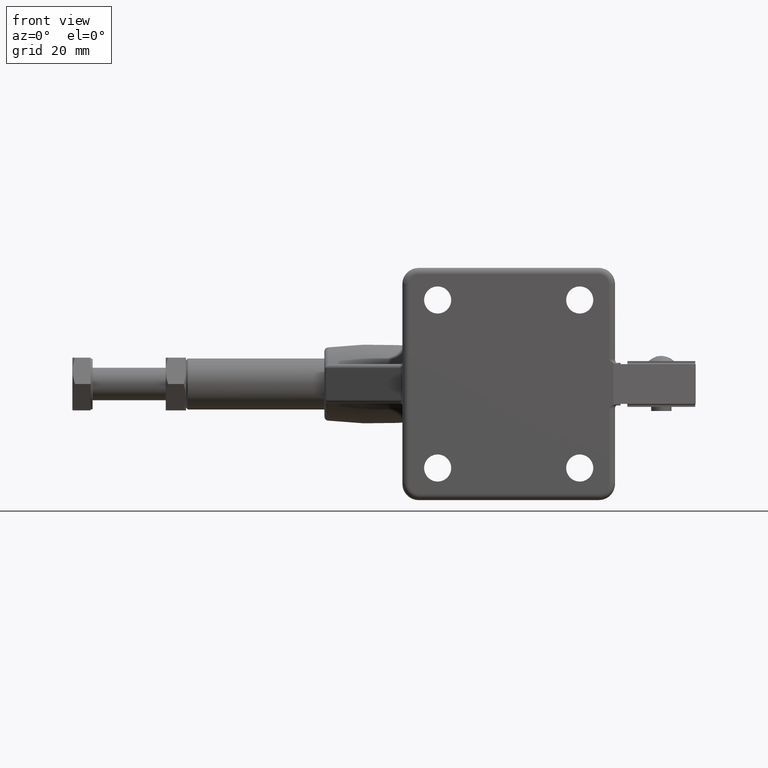
[diagram: clean part render]
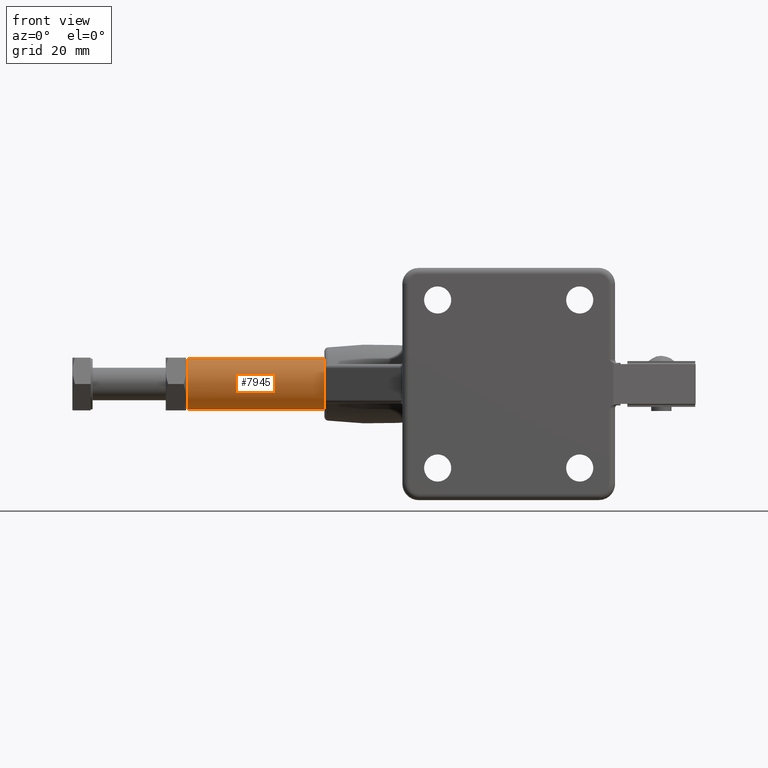
[diagram: same view with one face highlighted and labeled with its STEP entity id]
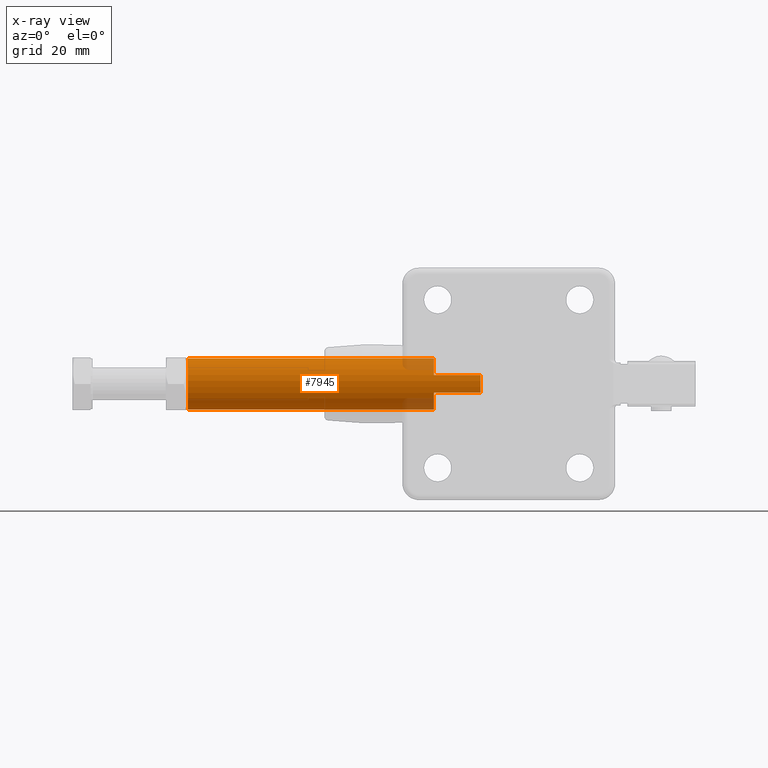
[diagram: x-ray of the same camera — body ghosted, the highlighted face saturated]
A machine part, front view. The second image highlights one B-rep face of the part: STEP entity #7945.
The next image is the same camera in x-ray: the body ghosted, the highlighted face saturated — about 5% of this face is hidden behind the body in this view.
In plain terms, the highlighted cylindrical surface (edge-blend (fillet) strip) has radius 6.29 mm, axis along (1, 0, 0).
Its self-contained STEP definition (entity closure, byte-faithful):
#425 = DIRECTION ( 'NONE',  ( 1.000000000000000000, -0.0000000000000000000, -0.0000000000000000000 ) ) ;
#1159 = LINE ( 'NONE', #7478, #7119 ) ;
#1387 = CARTESIAN_POINT ( 'NONE',  ( -123.7434796880213700, 25.40000000000008700, 6.289999999999997400 ) ) ;
#1403 = CARTESIAN_POINT ( 'NONE',  ( -123.2434796880213700, 25.40000000000008700, -6.290000000000003600 ) ) ;
#1465 = VECTOR ( 'NONE', #4222, 1000.000000000000000 ) ;
#1559 = AXIS2_PLACEMENT_3D ( 'NONE', #8323, #2423, #3892 ) ;
#1698 = ORIENTED_EDGE ( 'NONE', *, *, #5644, .F. ) ;
#1837 = CARTESIAN_POINT ( 'NONE',  ( -123.2434796880213700, 25.40000000000008700, 6.289999999999997400 ) ) ;
#1849 = EDGE_CURVE ( 'NONE', #4898, #8342, #1905, .T. ) ;
#1892 = DIRECTION ( 'NONE',  ( -1.000000000000000000, 0.0000000000000000000, 0.0000000000000000000 ) ) ;
#1905 = LINE ( 'NONE', #4990, #1465 ) ;
#1906 = EDGE_CURVE ( 'NONE', #6816, #6336, #2991, .T. ) ;
#2155 = ORIENTED_EDGE ( 'NONE', *, *, #1906, .F. ) ;
#2314 = CARTESIAN_POINT ( 'NONE',  ( -62.64347968802136500, 25.40000000000008700, -3.719593420145837800E-015 ) ) ;
#2373 = CARTESIAN_POINT ( 'NONE',  ( -62.64347968802136500, 19.50728415753830800, -2.200000000000002000 ) ) ;
#2423 = DIRECTION ( 'NONE',  ( 1.000000000000000000, 0.0000000000000000000, 0.0000000000000000000 ) ) ;
#2465 = VERTEX_POINT ( 'NONE', #1403 ) ;
#2613 = EDGE_CURVE ( 'NONE', #3290, #4898, #4861, .T. ) ;
#2772 = CARTESIAN_POINT ( 'NONE',  ( -51.14347968802136500, 19.50728415753830800, -2.200000000000002000 ) ) ;
#2815 = EDGE_CURVE ( 'NONE', #3119, #2465, #8875, .T. ) ;
#2821 = DIRECTION ( 'NONE',  ( 1.000000000000000000, -0.0000000000000000000, -0.0000000000000000000 ) ) ;
#2851 = ORIENTED_EDGE ( 'NONE', *, *, #1849, .F. ) ;
#2901 = CIRCLE ( 'NONE', #9620, 6.290000000000000000 ) ;
#2991 = CIRCLE ( 'NONE', #3723, 6.290000000000000000 ) ;
#3075 = DIRECTION ( 'NONE',  ( 0.0000000000000000000, 0.0000000000000000000, 1.000000000000000000 ) ) ;
#3084 = CARTESIAN_POINT ( 'NONE',  ( -51.14347968802136500, 19.50728415753830800, 2.199999999999994000 ) ) ;
#3119 = VERTEX_POINT ( 'NONE', #1837 ) ;
#3164 = CYLINDRICAL_SURFACE ( 'NONE', #1559, 6.290000000000000000 ) ;
#3290 = VERTEX_POINT ( 'NONE', #6738 ) ;
#3393 = FACE_OUTER_BOUND ( 'NONE', #4736, .T. ) ;
#3477 = LINE ( 'NONE', #1387, #4828 ) ;
#3723 = AXIS2_PLACEMENT_3D ( 'NONE', #7292, #2821, #8024 ) ;
#3754 = DIRECTION ( 'NONE',  ( 1.000000000000000000, 0.0000000000000000000, 0.0000000000000000000 ) ) ;
#3892 = DIRECTION ( 'NONE',  ( 0.0000000000000000000, 0.0000000000000000000, -1.000000000000000000 ) ) ;
#4186 = VECTOR ( 'NONE', #8886, 1000.000000000000000 ) ;
#4213 = ORIENTED_EDGE ( 'NONE', *, *, #4593, .T. ) ;
#4222 = DIRECTION ( 'NONE',  ( 1.000000000000000000, 0.0000000000000000000, 0.0000000000000000000 ) ) ;
#4433 = LINE ( 'NONE', #6680, #4186 ) ;
#4593 = EDGE_CURVE ( 'NONE', #2465, #6336, #1159, .T. ) ;
#4736 = EDGE_LOOP ( 'NONE', ( #1698, #6256, #4213, #2155, #6720, #5193, #2851, #9233 ) ) ;
#4828 = VECTOR ( 'NONE', #5134, 1000.000000000000000 ) ;
#4861 = CIRCLE ( 'NONE', #5192, 6.290000000000000000 ) ;
#4898 = VERTEX_POINT ( 'NONE', #9241 ) ;
#4939 = CARTESIAN_POINT ( 'NONE',  ( -123.2434796880213700, 25.40000000000008700, -3.719593420145837800E-015 ) ) ;
#4990 = CARTESIAN_POINT ( 'NONE',  ( -123.7434796880213700, 19.50728415753830800, 2.199999999999994000 ) ) ;
#5061 = VERTEX_POINT ( 'NONE', #2772 ) ;
#5134 = DIRECTION ( 'NONE',  ( 1.000000000000000000, 0.0000000000000000000, 0.0000000000000000000 ) ) ;
#5192 = AXIS2_PLACEMENT_3D ( 'NONE', #2314, #7541, #3075 ) ;
#5193 = ORIENTED_EDGE ( 'NONE', *, *, #9108, .T. ) ;
#5454 = AXIS2_PLACEMENT_3D ( 'NONE', #4939, #425, #5690 ) ;
#5644 = EDGE_CURVE ( 'NONE', #3119, #3290, #3477, .T. ) ;
#5690 = DIRECTION ( 'NONE',  ( 0.0000000000000000000, 0.0000000000000000000, -1.000000000000000000 ) ) ;
#6256 = ORIENTED_EDGE ( 'NONE', *, *, #2815, .T. ) ;
#6336 = VERTEX_POINT ( 'NONE', #7576 ) ;
#6395 = CARTESIAN_POINT ( 'NONE',  ( -51.14347968802136500, 25.40000000000008700, -3.719593420145837800E-015 ) ) ;
#6680 = CARTESIAN_POINT ( 'NONE',  ( -123.7434796880213700, 19.50728415753830800, -2.200000000000002000 ) ) ;
#6709 = EDGE_CURVE ( 'NONE', #5061, #6816, #4433, .T. ) ;
#6720 = ORIENTED_EDGE ( 'NONE', *, *, #6709, .F. ) ;
#6738 = CARTESIAN_POINT ( 'NONE',  ( -62.64347968802136500, 25.40000000000008700, 6.289999999999997400 ) ) ;
#6816 = VERTEX_POINT ( 'NONE', #2373 ) ;
#7119 = VECTOR ( 'NONE', #3754, 1000.000000000000000 ) ;
#7142 = DIRECTION ( 'NONE',  ( 0.0000000000000000000, 0.0000000000000000000, -1.000000000000000000 ) ) ;
#7292 = CARTESIAN_POINT ( 'NONE',  ( -62.64347968802136500, 25.40000000000008700, -3.719593420145837800E-015 ) ) ;
#7478 = CARTESIAN_POINT ( 'NONE',  ( -123.7434796880213700, 25.40000000000008700, -6.290000000000003600 ) ) ;
#7541 = DIRECTION ( 'NONE',  ( 1.000000000000000000, 0.0000000000000000000, 0.0000000000000000000 ) ) ;
#7576 = CARTESIAN_POINT ( 'NONE',  ( -62.64347968802136500, 25.40000000000008700, -6.290000000000003600 ) ) ;
#7945 = ADVANCED_FACE ( 'NONE', ( #3393 ), #3164, .T. ) ;
#8024 = DIRECTION ( 'NONE',  ( 0.0000000000000000000, 0.0000000000000000000, 1.000000000000000000 ) ) ;
#8323 = CARTESIAN_POINT ( 'NONE',  ( -123.7434796880213700, 25.40000000000008700, -3.719593420145837800E-015 ) ) ;
#8342 = VERTEX_POINT ( 'NONE', #3084 ) ;
#8875 = CIRCLE ( 'NONE', #5454, 6.290000000000000000 ) ;
#8886 = DIRECTION ( 'NONE',  ( -1.000000000000000000, -0.0000000000000000000, -0.0000000000000000000 ) ) ;
#9108 = EDGE_CURVE ( 'NONE', #5061, #8342, #2901, .T. ) ;
#9233 = ORIENTED_EDGE ( 'NONE', *, *, #2613, .F. ) ;
#9241 = CARTESIAN_POINT ( 'NONE',  ( -62.64347968802136500, 19.50728415753830800, 2.199999999999994000 ) ) ;
#9620 = AXIS2_PLACEMENT_3D ( 'NONE', #6395, #1892, #7142 ) ;